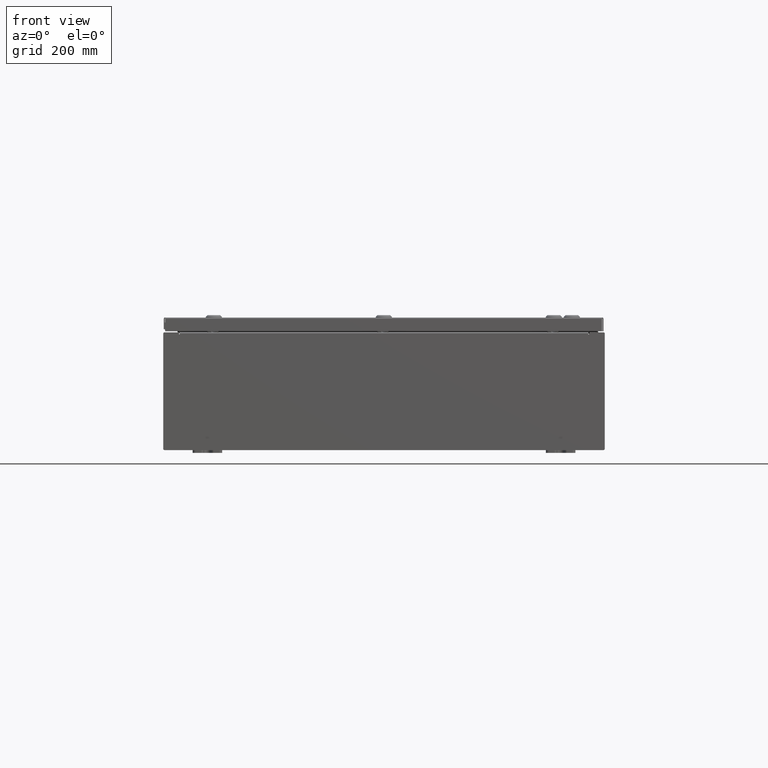
[diagram: clean part render]
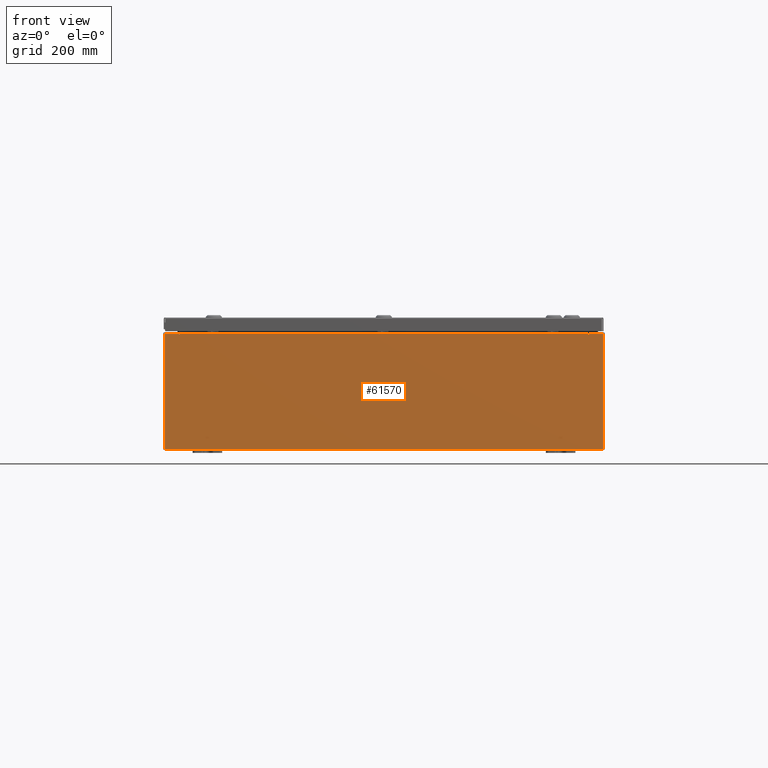
[diagram: same view with one face highlighted and labeled with its STEP entity id]
A machine part, front view. The second image highlights one B-rep face of the part: STEP entity #61570.
In plain terms, the highlighted planar face has unit normal (-0, 1, -0).
Its self-contained STEP definition (entity closure, byte-faithful):
#122 = CARTESIAN_POINT ( 'NONE',  ( -14.92529999999999800, 0.0000000000000000000, -3.925299999999999600 ) ) ;
#475 = ORIENTED_EDGE ( 'NONE', *, *, #21534, .F. ) ;
#1538 = ORIENTED_EDGE ( 'NONE', *, *, #57844, .T. ) ;
#2143 = VECTOR ( 'NONE', #5121, 39.37007874015748100 ) ;
#2674 = PLANE ( 'NONE',  #24220 ) ;
#3561 = CARTESIAN_POINT ( 'NONE',  ( 13.92454999999983700, -0.0000000000000000000, -6.044052270931817700E-013 ) ) ;
#3596 = VECTOR ( 'NONE', #61340, 39.37007874015748100 ) ;
#4195 = ORIENTED_EDGE ( 'NONE', *, *, #55542, .F. ) ;
#4762 = DIRECTION ( 'NONE',  ( 1.000000000000000000, 0.0000000000000000000, 0.0000000000000000000 ) ) ;
#5121 = DIRECTION ( 'NONE',  ( -0.0000000000000000000, -0.0000000000000000000, 1.000000000000000000 ) ) ;
#5255 = CARTESIAN_POINT ( 'NONE',  ( -13.92455000000000000, -0.0000000000000000000, 0.0000000000000000000 ) ) ;
#5354 = CIRCLE ( 'NONE', #15655, 0.01867499999999949400 ) ;
#5581 = VECTOR ( 'NONE', #17512, 39.37007874015748100 ) ;
#7089 = CARTESIAN_POINT ( 'NONE',  ( -14.92529999999999800, 0.0000000000000000000, -3.925299999999999600 ) ) ;
#7589 = LINE ( 'NONE', #7089, #33056 ) ;
#7787 = DIRECTION ( 'NONE',  ( 0.0000000000000000000, -1.000000000000000000, 0.0000000000000000000 ) ) ;
#8079 = FACE_OUTER_BOUND ( 'NONE', #41065, .T. ) ;
#8529 = LINE ( 'NONE', #45417, #20502 ) ;
#9568 = CARTESIAN_POINT ( 'NONE',  ( -13.88720000000000200, 1.024442997624098700E-016, 3.912299999999999700 ) ) ;
#9822 = DIRECTION ( 'NONE',  ( 1.000000000000000000, 0.0000000000000000000, 0.0000000000000000000 ) ) ;
#12696 = VERTEX_POINT ( 'NONE', #62235 ) ;
#14172 = CARTESIAN_POINT ( 'NONE',  ( 13.90587500000000500, 0.0000000000000000000, 3.874949999999999700 ) ) ;
#14650 = VECTOR ( 'NONE', #61425, 39.37007874015748100 ) ;
#14705 = ORIENTED_EDGE ( 'NONE', *, *, #64899, .T. ) ;
#15483 = VERTEX_POINT ( 'NONE', #26244 ) ;
#15655 = AXIS2_PLACEMENT_3D ( 'NONE', #14172, #49771, #19313 ) ;
#17512 = DIRECTION ( 'NONE',  ( 0.0000000000000000000, 0.0000000000000000000, -1.000000000000000000 ) ) ;
#18941 = CARTESIAN_POINT ( 'NONE',  ( -13.90587500000000200, 0.0000000000000000000, 3.874949999999999700 ) ) ;
#19313 = DIRECTION ( 'NONE',  ( 0.0000000000000000000, 0.0000000000000000000, -1.000000000000000000 ) ) ;
#19850 = VERTEX_POINT ( 'NONE', #27334 ) ;
#19949 = VECTOR ( 'NONE', #54847, 39.37007874015748100 ) ;
#20502 = VECTOR ( 'NONE', #9822, 39.37007874015748100 ) ;
#20818 = AXIS2_PLACEMENT_3D ( 'NONE', #18941, #54522, #24034 ) ;
#21534 = EDGE_CURVE ( 'NONE', #33453, #22646, #31055, .T. ) ;
#22646 = VERTEX_POINT ( 'NONE', #31373 ) ;
#23783 = VECTOR ( 'NONE', #54299, 39.37007874015748100 ) ;
#24034 = DIRECTION ( 'NONE',  ( 0.0000000000000000000, 0.0000000000000000000, -1.000000000000000000 ) ) ;
#24220 = AXIS2_PLACEMENT_3D ( 'NONE', #38253, #7787, #43385 ) ;
#26244 = CARTESIAN_POINT ( 'NONE',  ( 13.88720000000000500, 0.0000000000000000000, 3.874949999999999700 ) ) ;
#27095 = EDGE_CURVE ( 'NONE', #38608, #34044, #61155, .T. ) ;
#27334 = CARTESIAN_POINT ( 'NONE',  ( -13.92455000000000000, 0.0000000000000000000, 3.874949999999999700 ) ) ;
#27905 = ORIENTED_EDGE ( 'NONE', *, *, #47777, .T. ) ;
#28826 = CARTESIAN_POINT ( 'NONE',  ( -13.92455000000000000, 0.0000000000000000000, 3.925299999999999600 ) ) ;
#29553 = EDGE_CURVE ( 'NONE', #50040, #15483, #5354, .T. ) ;
#30680 = LINE ( 'NONE', #5255, #3596 ) ;
#31055 = LINE ( 'NONE', #47972, #5581 ) ;
#31373 = CARTESIAN_POINT ( 'NONE',  ( -13.88720000000000200, -0.0000000000000000000, 3.874949999999999700 ) ) ;
#31837 = LINE ( 'NONE', #64863, #19949 ) ;
#31886 = EDGE_CURVE ( 'NONE', #15483, #32330, #31837, .T. ) ;
#32187 = ORIENTED_EDGE ( 'NONE', *, *, #39198, .F. ) ;
#32330 = VERTEX_POINT ( 'NONE', #58295 ) ;
#33012 = ORIENTED_EDGE ( 'NONE', *, *, #27095, .T. ) ;
#33021 = CARTESIAN_POINT ( 'NONE',  ( -14.92529999999999800, 0.0000000000000000000, 3.925299999999999600 ) ) ;
#33056 = VECTOR ( 'NONE', #47583, 39.37007874015748100 ) ;
#33453 = VERTEX_POINT ( 'NONE', #9568 ) ;
#34044 = VERTEX_POINT ( 'NONE', #28826 ) ;
#35608 = CARTESIAN_POINT ( 'NONE',  ( -14.92529999999999800, 0.0000000000000000000, 3.925299999999999600 ) ) ;
#36250 = CARTESIAN_POINT ( 'NONE',  ( 14.92530000000000200, 0.0000000000000000000, 3.925299999999999600 ) ) ;
#37273 = VERTEX_POINT ( 'NONE', #61592 ) ;
#37492 = ORIENTED_EDGE ( 'NONE', *, *, #39870, .T. ) ;
#38253 = CARTESIAN_POINT ( 'NONE',  ( 0.0000000000000000000, 0.0000000000000000000, 0.0000000000000000000 ) ) ;
#38477 = EDGE_CURVE ( 'NONE', #40886, #46661, #7589, .T. ) ;
#38555 = VECTOR ( 'NONE', #58617, 39.37007874015748100 ) ;
#38608 = VERTEX_POINT ( 'NONE', #58916 ) ;
#39198 = EDGE_CURVE ( 'NONE', #19850, #34044, #30680, .T. ) ;
#39386 = CARTESIAN_POINT ( 'NONE',  ( 13.92455000000000500, 0.0000000000000000000, 3.874949999999999700 ) ) ;
#39870 = EDGE_CURVE ( 'NONE', #37273, #12696, #64045, .T. ) ;
#40886 = VERTEX_POINT ( 'NONE', #48442 ) ;
#41065 = EDGE_LOOP ( 'NONE', ( #32187, #46054, #475, #27905, #57545, #63606, #4195, #37492, #14705, #49980, #1538, #33012 ) ) ;
#41150 = LINE ( 'NONE', #35608, #2143 ) ;
#41675 = LINE ( 'NONE', #36250, #14650 ) ;
#43385 = DIRECTION ( 'NONE',  ( 0.0000000000000000000, -0.0000000000000000000, -1.000000000000000000 ) ) ;
#45417 = CARTESIAN_POINT ( 'NONE',  ( -13.88720000000000200, 1.024442997624098700E-016, 3.912299999999999700 ) ) ;
#46054 = ORIENTED_EDGE ( 'NONE', *, *, #61597, .F. ) ;
#46661 = VERTEX_POINT ( 'NONE', #122 ) ;
#47117 = CIRCLE ( 'NONE', #20818, 0.01867499999999949400 ) ;
#47570 = VECTOR ( 'NONE', #4762, 39.37007874015748100 ) ;
#47583 = DIRECTION ( 'NONE',  ( -1.000000000000000000, -0.0000000000000000000, -0.0000000000000000000 ) ) ;
#47777 = EDGE_CURVE ( 'NONE', #33453, #32330, #8529, .T. ) ;
#47972 = CARTESIAN_POINT ( 'NONE',  ( -13.88720000000000200, -0.0000000000000000000, 0.0000000000000000000 ) ) ;
#48442 = CARTESIAN_POINT ( 'NONE',  ( 14.92530000000000200, 0.0000000000000000000, -3.925299999999999600 ) ) ;
#49771 = DIRECTION ( 'NONE',  ( -0.0000000000000000000, 1.000000000000000000, -0.0000000000000000000 ) ) ;
#49980 = ORIENTED_EDGE ( 'NONE', *, *, #38477, .T. ) ;
#50040 = VERTEX_POINT ( 'NONE', #39386 ) ;
#50389 = CARTESIAN_POINT ( 'NONE',  ( -14.92529999999999800, 0.0000000000000000000, 3.925299999999999600 ) ) ;
#50880 = LINE ( 'NONE', #3561, #23783 ) ;
#54299 = DIRECTION ( 'NONE',  ( -4.340572780400004900E-014, 0.0000000000000000000, -1.000000000000000000 ) ) ;
#54522 = DIRECTION ( 'NONE',  ( -0.0000000000000000000, 1.000000000000000000, -0.0000000000000000000 ) ) ;
#54847 = DIRECTION ( 'NONE',  ( 0.0000000000000000000, 0.0000000000000000000, 1.000000000000000000 ) ) ;
#55542 = EDGE_CURVE ( 'NONE', #37273, #50040, #50880, .T. ) ;
#57545 = ORIENTED_EDGE ( 'NONE', *, *, #31886, .F. ) ;
#57844 = EDGE_CURVE ( 'NONE', #46661, #38608, #41150, .T. ) ;
#58295 = CARTESIAN_POINT ( 'NONE',  ( 13.88720000000000500, 0.0000000000000000000, 3.912299999999999700 ) ) ;
#58617 = DIRECTION ( 'NONE',  ( 1.000000000000000000, 0.0000000000000000000, 0.0000000000000000000 ) ) ;
#58916 = CARTESIAN_POINT ( 'NONE',  ( -14.92529999999999800, 0.0000000000000000000, 3.925299999999999600 ) ) ;
#61155 = LINE ( 'NONE', #50389, #47570 ) ;
#61340 = DIRECTION ( 'NONE',  ( 0.0000000000000000000, 0.0000000000000000000, 1.000000000000000000 ) ) ;
#61425 = DIRECTION ( 'NONE',  ( 0.0000000000000000000, 0.0000000000000000000, -1.000000000000000000 ) ) ;
#61570 = ADVANCED_FACE ( 'NONE', ( #8079 ), #2674, .F. ) ;
#61592 = CARTESIAN_POINT ( 'NONE',  ( 13.92455000000000700, 0.0000000000000000000, 3.925299999999999600 ) ) ;
#61597 = EDGE_CURVE ( 'NONE', #22646, #19850, #47117, .T. ) ;
#62235 = CARTESIAN_POINT ( 'NONE',  ( 14.92530000000000200, 0.0000000000000000000, 3.925299999999999600 ) ) ;
#63606 = ORIENTED_EDGE ( 'NONE', *, *, #29553, .F. ) ;
#64045 = LINE ( 'NONE', #33021, #38555 ) ;
#64863 = CARTESIAN_POINT ( 'NONE',  ( 13.88720000000000500, 0.0000000000000000000, 0.0000000000000000000 ) ) ;
#64899 = EDGE_CURVE ( 'NONE', #12696, #40886, #41675, .T. ) ;